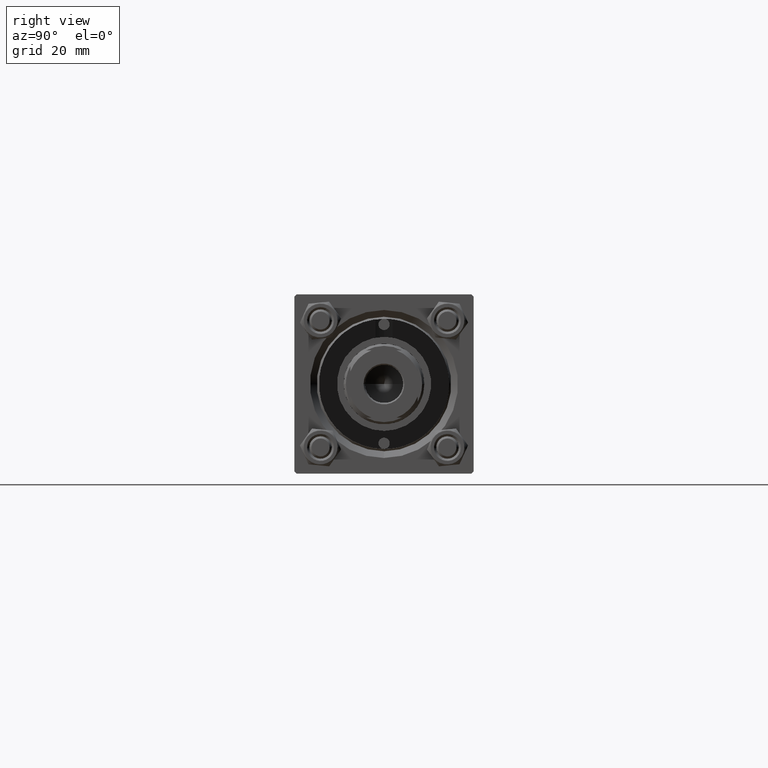
[diagram: clean part render]
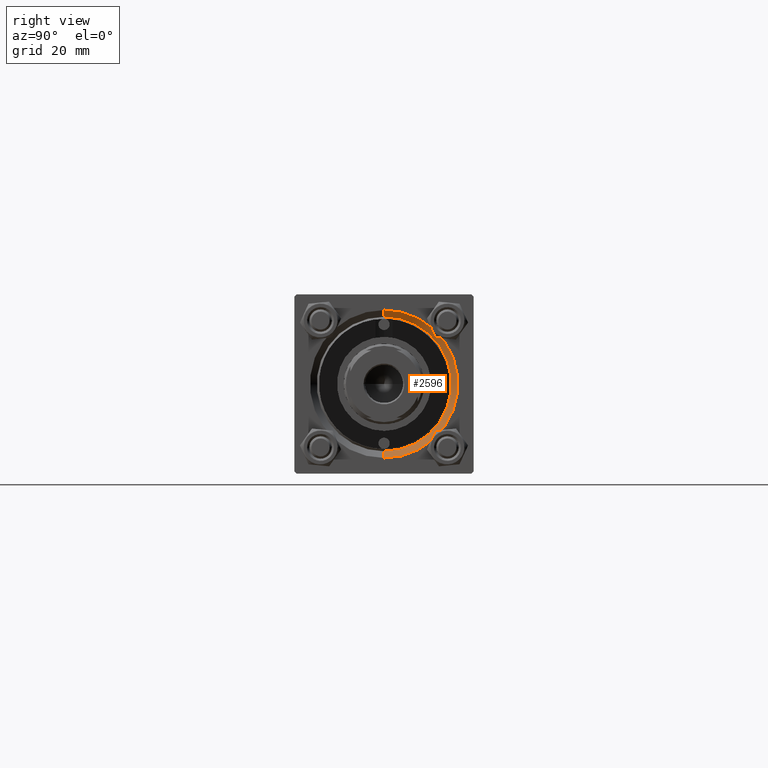
[diagram: same view with one face highlighted and labeled with its STEP entity id]
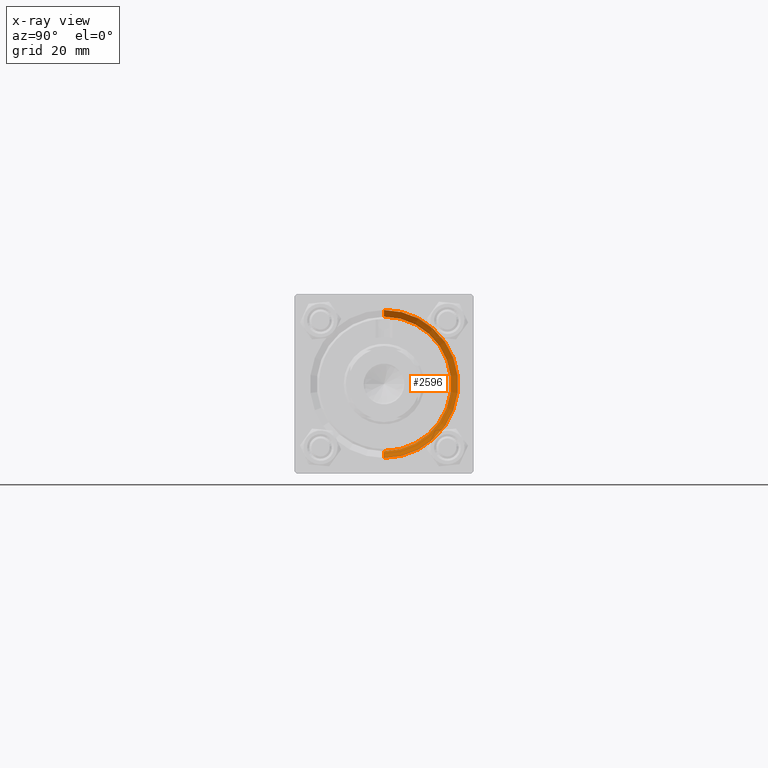
[diagram: x-ray of the same camera — body ghosted, the highlighted face saturated]
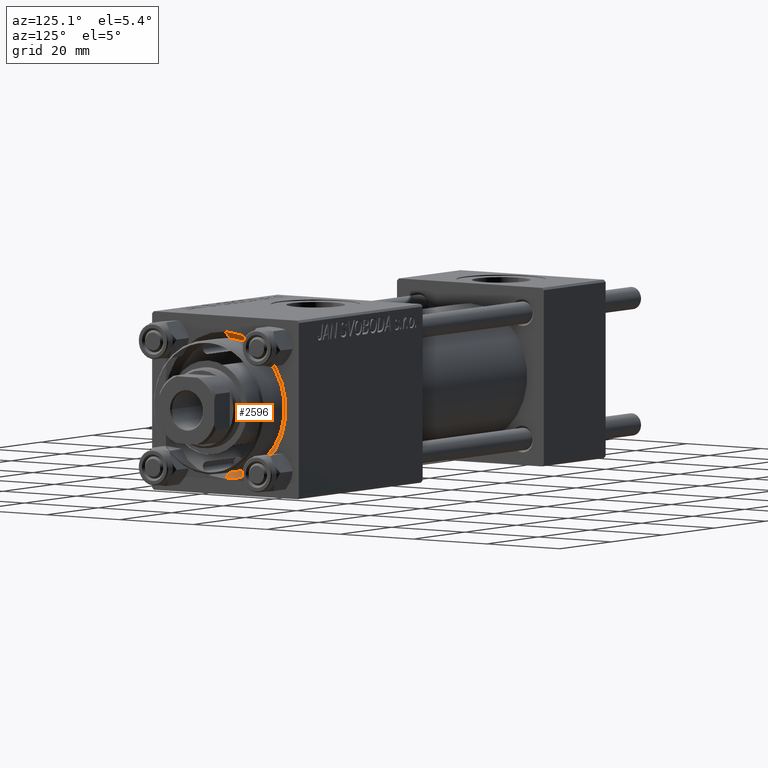
[diagram: same view with one face highlighted and labeled with its STEP entity id]
A machine part, right view. The second image highlights one B-rep face of the part: STEP entity #2596.
The next image is the same camera in x-ray: the body ghosted, the highlighted face saturated — about 0% of this face is hidden behind the body in this view.
A second angle (auxiliary view) of the same face is appended — the face is thin or edge-on in the first view.
In plain terms, the highlighted conical surface has half-angle 45 deg.
Its self-contained STEP definition (entity closure, byte-faithful):
#441 = CARTESIAN_POINT ( 'NONE',  ( 117.5000000000000000, 0.000000000000000000, -15.00000000000000000 ) ) ;
#610 = CONICAL_SURFACE ( 'NONE', #42549, 15.00000000000000000, 0.7853981633974482790 ) ;
#1526 = ORIENTED_EDGE ( 'NONE', *, *, #21502, .F. ) ;
#2180 = DIRECTION ( 'NONE',  ( 0.000000000000000000, 0.000000000000000000, 1.000000000000000000 ) ) ;
#2596 = ADVANCED_FACE ( 'NONE', ( #23201 ), #610, .F. ) ;
#7855 = VECTOR ( 'NONE', #30338, 1000.000000000000114 ) ;
#8394 = ORIENTED_EDGE ( 'NONE', *, *, #20613, .F. ) ;
#8448 = VERTEX_POINT ( 'NONE', #31392 ) ;
#11148 = EDGE_CURVE ( 'NONE', #27105, #27301, #28960, .T. ) ;
#11189 = CARTESIAN_POINT ( 'NONE',  ( 117.5000000000000000, 1.836970198721029589E-15, 15.00000000000000000 ) ) ;
#12077 = CARTESIAN_POINT ( 'NONE',  ( 117.5000000000000000, 0.000000000000000000, 0.000000000000000000 ) ) ;
#15120 = DIRECTION ( 'NONE',  ( 1.000000000000000000, 0.000000000000000000, 0.000000000000000000 ) ) ;
#15864 = DIRECTION ( 'NONE',  ( 0.000000000000000000, 0.000000000000000000, -1.000000000000000000 ) ) ;
#16009 = ORIENTED_EDGE ( 'NONE', *, *, #36085, .T. ) ;
#17492 = EDGE_LOOP ( 'NONE', ( #8394, #25532, #16009, #1526 ) ) ;
#20613 = EDGE_CURVE ( 'NONE', #27301, #8448, #49006, .T. ) ;
#21029 = VECTOR ( 'NONE', #29987, 1000.000000000000114 ) ;
#21378 = DIRECTION ( 'NONE',  ( 1.000000000000000000, 0.000000000000000000, 0.000000000000000000 ) ) ;
#21502 = EDGE_CURVE ( 'NONE', #8448, #29606, #35144, .T. ) ;
#21838 = CARTESIAN_POINT ( 'NONE',  ( 119.0000000000000142, 0.000000000000000000, -16.50000000000001421 ) ) ;
#23201 = FACE_OUTER_BOUND ( 'NONE', #17492, .T. ) ;
#23342 = AXIS2_PLACEMENT_3D ( 'NONE', #36500, #21378, #2180 ) ;
#24099 = CARTESIAN_POINT ( 'NONE',  ( 117.5000000000000000, 0.000000000000000000, -15.00000000000000000 ) ) ;
#25532 = ORIENTED_EDGE ( 'NONE', *, *, #11148, .F. ) ;
#27105 = VERTEX_POINT ( 'NONE', #24099 ) ;
#27301 = VERTEX_POINT ( 'NONE', #11189 ) ;
#28960 = CIRCLE ( 'NONE', #23342, 15.00000000000000000 ) ;
#29606 = VERTEX_POINT ( 'NONE', #21838 ) ;
#29844 = CARTESIAN_POINT ( 'NONE',  ( 117.5000000000000000, 1.836970198721029589E-15, 15.00000000000000000 ) ) ;
#29987 = DIRECTION ( 'NONE',  ( 0.7071067811865474617, 0.000000000000000000, -0.7071067811865474617 ) ) ;
#30338 = DIRECTION ( 'NONE',  ( 0.7071067811865474617, 8.659560562354932858E-17, 0.7071067811865474617 ) ) ;
#31392 = CARTESIAN_POINT ( 'NONE',  ( 119.0000000000000142, 2.020667218593134678E-15, 16.50000000000001421 ) ) ;
#32076 = DIRECTION ( 'NONE',  ( -1.000000000000000000, -0.000000000000000000, -0.000000000000000000 ) ) ;
#35007 = LINE ( 'NONE', #441, #21029 ) ;
#35144 = CIRCLE ( 'NONE', #41613, 16.50000000000001421 ) ;
#36085 = EDGE_CURVE ( 'NONE', #27105, #29606, #35007, .T. ) ;
#36500 = CARTESIAN_POINT ( 'NONE',  ( 117.5000000000000000, 0.000000000000000000, 0.000000000000000000 ) ) ;
#39654 = DIRECTION ( 'NONE',  ( 0.000000000000000000, 0.000000000000000000, 1.000000000000000000 ) ) ;
#41613 = AXIS2_PLACEMENT_3D ( 'NONE', #43703, #32076, #39654 ) ;
#42549 = AXIS2_PLACEMENT_3D ( 'NONE', #12077, #15120, #15864 ) ;
#43703 = CARTESIAN_POINT ( 'NONE',  ( 119.0000000000000142, 0.000000000000000000, 0.000000000000000000 ) ) ;
#49006 = LINE ( 'NONE', #29844, #7855 ) ;